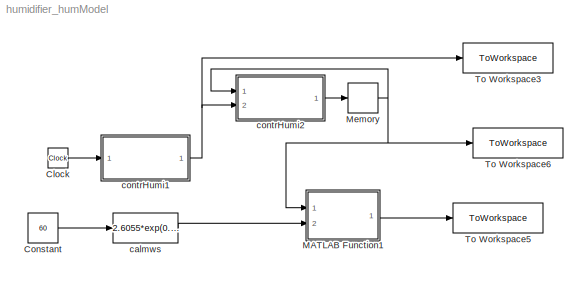
MODEL humidifier_humModel
KIND model
BLOCK [Clock] Clock
  SID = 109
BLOCK [Constant] Constant
  SID = 399
  Value = 60
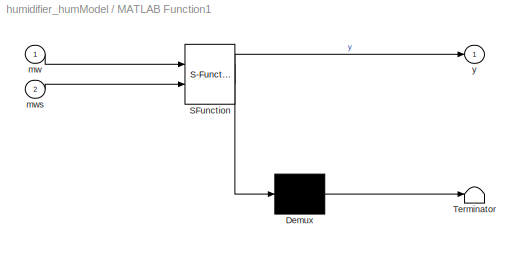
BLOCK [SubSystem] MATLAB Function1
  ErrorFcn = Stateflow.Translate.translate
  PermitHierarchicalResolution = ExplicitOnly
  Ports = [2, 1]
  RequestExecContextInheritance = off
  SFBlockType = MATLAB Function
  SID = 396
  TreatAsAtomicUnit = on
BLOCK [Demux] MATLAB Function1/ Demux 
  Outputs = 1
  Ports = [1, 1]
  SID = 396::20
BLOCK [S-Function] MATLAB Function1/ SFunction 
  EnableBusSupport = on
  FunctionName = sf_sfun
  PortCounts = [2 2]
  Ports = [2, 2]
  SFcnIsStateOwnerBlock = off
  SFunctionDeploymentMode = off
  SID = 396::19
  Tag = Stateflow S-Function 1
BLOCK [Terminator] MATLAB Function1/ Terminator 
  SID = 396::21
BLOCK [Inport] MATLAB Function1/mw
  IconDisplay = Port number
  SID = 396::1
BLOCK [Inport] MATLAB Function1/mws
  IconDisplay = Port number
  Port = 2
  SID = 396::22
BLOCK [Outport] MATLAB Function1/y
  IconDisplay = Port number
  SID = 396::5
BLOCK [Memory] Memory
  InitialCondition = initMW
  SID = 412
BLOCK [ToWorkspace] To Workspace3
  FixptAsFi = on
  MaxDataPoints = inf
  Ports = [1]
  SID = 414
  SampleTime = -1
  VariableName = u
BLOCK [ToWorkspace] To Workspace5
  FixptAsFi = on
  MaxDataPoints = inf
  Ports = [1]
  SID = 397
  SampleTime = -1
  VariableName = rh
BLOCK [ToWorkspace] To Workspace6
  FixptAsFi = on
  MaxDataPoints = inf
  Ports = [1]
  SID = 400
  SampleTime = -1
  VariableName = mw
BLOCK [Fcn] calmws
  Expr = 2.6055*exp(0.0262*u)
  SID = 395
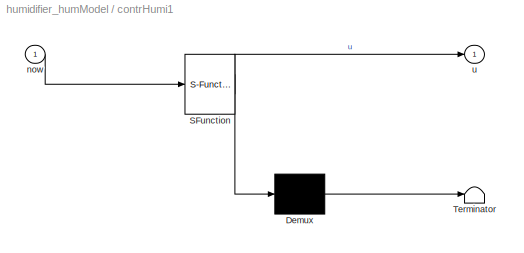
BLOCK [SubSystem] contrHumi1
  ErrorFcn = Stateflow.Translate.translate
  PermitHierarchicalResolution = ExplicitOnly
  Ports = [1, 1]
  RequestExecContextInheritance = off
  SFBlockType = MATLAB Function
  SID = 410
  TreatAsAtomicUnit = on
BLOCK [Demux] contrHumi1/ Demux 
  Outputs = 1
  Ports = [1, 1]
  SID = 410::20
BLOCK [S-Function] contrHumi1/ SFunction 
  EnableBusSupport = on
  FunctionName = sf_sfun
  Parameters = startHumidifier,timeLengthHumidifier
  PortCounts = [1 2]
  Ports = [1, 2]
  SFcnIsStateOwnerBlock = off
  SFunctionDeploymentMode = off
  SID = 410::19
  Tag = Stateflow S-Function 2
BLOCK [Terminator] contrHumi1/ Terminator 
  SID = 410::21
BLOCK [Inport] contrHumi1/now
  IconDisplay = Port number
  SID = 410::27
BLOCK [Outport] contrHumi1/u
  IconDisplay = Port number
  SID = 410::5
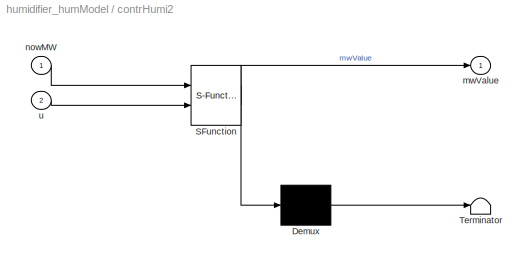
BLOCK [SubSystem] contrHumi2
  ErrorFcn = Stateflow.Translate.translate
  PermitHierarchicalResolution = ExplicitOnly
  Ports = [2, 1]
  RequestExecContextInheritance = off
  SFBlockType = MATLAB Function
  SID = 411
  TreatAsAtomicUnit = on
BLOCK [Demux] contrHumi2/ Demux 
  Outputs = 1
  Ports = [1, 1]
  SID = 411::20
BLOCK [S-Function] contrHumi2/ SFunction 
  EnableBusSupport = on
  FunctionName = sf_sfun
  Parameters = fixedStep,massOfVapor,roomSize
  PortCounts = [2 2]
  Ports = [2, 2]
  SFcnIsStateOwnerBlock = off
  SFunctionDeploymentMode = off
  SID = 411::19
  Tag = Stateflow S-Function 3
BLOCK [Terminator] contrHumi2/ Terminator 
  SID = 411::21
BLOCK [Outport] contrHumi2/mwValue
  IconDisplay = Port number
  SID = 411::5
BLOCK [Inport] contrHumi2/nowMW
  IconDisplay = Port number
  SID = 411::33
BLOCK [Inport] contrHumi2/u
  IconDisplay = Port number
  Port = 2
  SID = 411::27
LINE Clock:1 -> contrHumi1:1
LINE Constant:1 -> calmws:1
LINE MATLAB Function1/ Demux :1 -> MATLAB Function1/ Terminator :1
LINE MATLAB Function1/ SFunction :1 -> MATLAB Function1/ Demux :1
LINE MATLAB Function1/ SFunction :2 -> MATLAB Function1/y:1
LINE MATLAB Function1/mw:1 -> MATLAB Function1/ SFunction :1
LINE MATLAB Function1/mws:1 -> MATLAB Function1/ SFunction :2
LINE MATLAB Function1:1 -> To Workspace5:1
NET Memory:1 -> MATLAB Function1:1, To Workspace6:1, contrHumi2:1
LINE calmws:1 -> MATLAB Function1:2
LINE contrHumi1/ Demux :1 -> contrHumi1/ Terminator :1
LINE contrHumi1/ SFunction :1 -> contrHumi1/ Demux :1
LINE contrHumi1/ SFunction :2 -> contrHumi1/u:1
LINE contrHumi1/now:1 -> contrHumi1/ SFunction :1
NET contrHumi1:1 -> To Workspace3:1, contrHumi2:2
LINE contrHumi2/ Demux :1 -> contrHumi2/ Terminator :1
LINE contrHumi2/ SFunction :1 -> contrHumi2/ Demux :1
LINE contrHumi2/ SFunction :2 -> contrHumi2/mwValue:1
LINE contrHumi2/nowMW:1 -> contrHumi2/ SFunction :1
LINE contrHumi2/u:1 -> contrHumi2/ SFunction :2
LINE contrHumi2:1 -> Memory:1
note: NET lines group one-source signal fan-out (src -> all destinations, sorted); 1:1 wires keep LINE
CHART MATLAB Function1 states=1 transitions=1
  STATE_LABEL 'eML_blk_kernel()'
CHART contrHumi1 states=1 transitions=1
  STATE_LABEL 'eML_blk_kernel()'
CHART contrHumi2 states=1 transitions=1
  STATE_LABEL 'eML_blk_kernel()'
